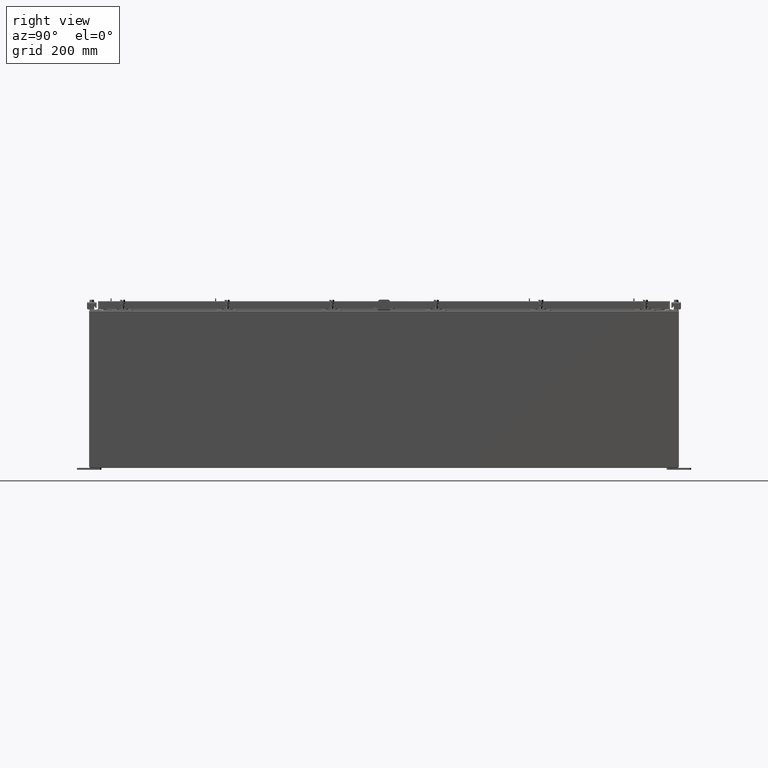
[diagram: clean part render]
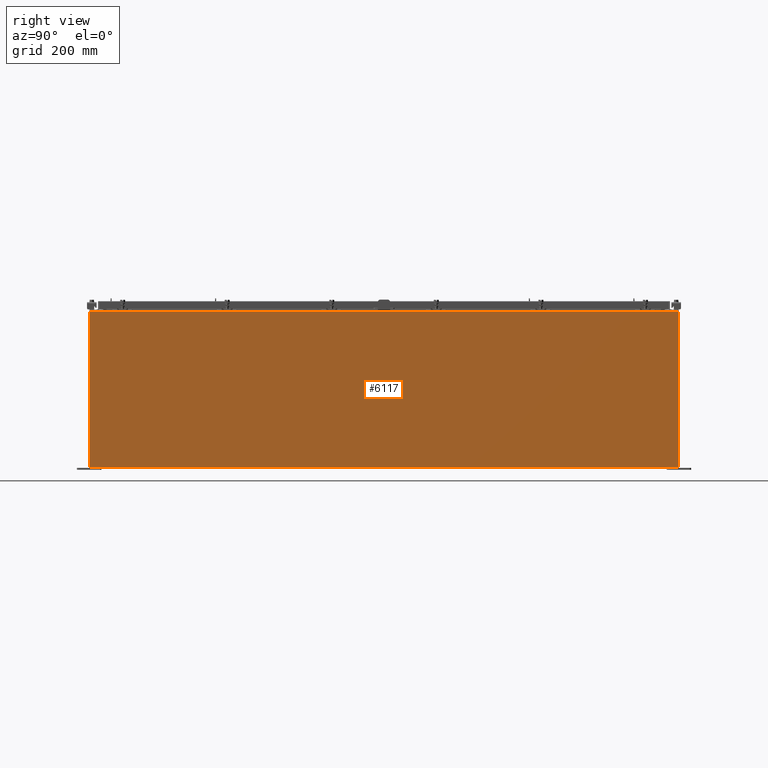
[diagram: same view with one face highlighted and labeled with its STEP entity id]
A machine part, right view. The second image highlights one B-rep face of the part: STEP entity #6117.
In plain terms, the highlighted planar face has unit normal (-1, 0, 0).
Its self-contained STEP definition (entity closure, byte-faithful):
#258 = AXIS2_PLACEMENT_3D ( 'NONE', #23745, #2544, #17443 ) ;
#409 = DIRECTION ( 'NONE',  ( 3.430827668758847500E-015, 0.0000000000000000000, 1.000000000000000000 ) ) ;
#619 = CARTESIAN_POINT ( 'NONE',  ( 17.99999999999999600, 29.92529999999999300, 0.01299999999999984700 ) ) ;
#2506 = EDGE_LOOP ( 'NONE', ( #26972, #9935, #16449, #12145 ) ) ;
#2544 = DIRECTION ( 'NONE',  ( -1.000000000000000000, 0.0000000000000000000, 3.430827668758846700E-015 ) ) ;
#3898 = FACE_OUTER_BOUND ( 'NONE', #2506, .T. ) ;
#4676 = DIRECTION ( 'NONE',  ( -0.0000000000000000000, -1.000000000000000000, -0.0000000000000000000 ) ) ;
#4718 = LINE ( 'NONE', #21718, #15394 ) ;
#5192 = CARTESIAN_POINT ( 'NONE',  ( 17.99999999999999600, -29.92530000000001100, 0.01299999999999984800 ) ) ;
#6117 = ADVANCED_FACE ( 'NONE', ( #3898 ), #21630, .F. ) ;
#6865 = CARTESIAN_POINT ( 'NONE',  ( 17.99999999999999600, 29.92529999999998900, -6.201571169367082000E-014 ) ) ;
#7078 = VERTEX_POINT ( 'NONE', #5192 ) ;
#7809 = VECTOR ( 'NONE', #409, 39.37007874015748100 ) ;
#8186 = EDGE_CURVE ( 'NONE', #26156, #19296, #4718, .T. ) ;
#9423 = EDGE_CURVE ( 'NONE', #19296, #7078, #13722, .T. ) ;
#9935 = ORIENTED_EDGE ( 'NONE', *, *, #9423, .T. ) ;
#12145 = ORIENTED_EDGE ( 'NONE', *, *, #18732, .T. ) ;
#12866 = CARTESIAN_POINT ( 'NONE',  ( 18.00000000000005300, -29.92530000000001100, 15.83760000000000200 ) ) ;
#12879 = VERTEX_POINT ( 'NONE', #619 ) ;
#13315 = CARTESIAN_POINT ( 'NONE',  ( 17.99999999999999600, -29.92530000000001100, 0.01299999999999984700 ) ) ;
#13446 = CARTESIAN_POINT ( 'NONE',  ( 18.00000000000005000, 29.92529999999999300, 15.83760000000000200 ) ) ;
#13722 = LINE ( 'NONE', #25548, #18691 ) ;
#14157 = LINE ( 'NONE', #6865, #7809 ) ;
#15394 = VECTOR ( 'NONE', #4676, 39.37007874015748100 ) ;
#16449 = ORIENTED_EDGE ( 'NONE', *, *, #25345, .F. ) ;
#17443 = DIRECTION ( 'NONE',  ( 3.430827668758846700E-015, 0.0000000000000000000, 1.000000000000000000 ) ) ;
#17730 = LINE ( 'NONE', #13315, #22693 ) ;
#18691 = VECTOR ( 'NONE', #19137, 39.37007874015748100 ) ;
#18732 = EDGE_CURVE ( 'NONE', #12879, #26156, #14157, .T. ) ;
#19137 = DIRECTION ( 'NONE',  ( -3.430827668758847500E-015, 0.0000000000000000000, -1.000000000000000000 ) ) ;
#19296 = VERTEX_POINT ( 'NONE', #12866 ) ;
#21630 = PLANE ( 'NONE',  #258 ) ;
#21718 = CARTESIAN_POINT ( 'NONE',  ( 18.00000000000005000, 29.92529999999999300, 15.83760000000000200 ) ) ;
#21935 = DIRECTION ( 'NONE',  ( -0.0000000000000000000, -1.000000000000000000, -0.0000000000000000000 ) ) ;
#22693 = VECTOR ( 'NONE', #21935, 39.37007874015748100 ) ;
#23745 = CARTESIAN_POINT ( 'NONE',  ( 17.99999999999999600, 0.0000000000000000000, -6.201571169367082000E-014 ) ) ;
#25345 = EDGE_CURVE ( 'NONE', #12879, #7078, #17730, .T. ) ;
#25548 = CARTESIAN_POINT ( 'NONE',  ( 17.99999999999999600, -29.92530000000001100, -6.201571169367082000E-014 ) ) ;
#26156 = VERTEX_POINT ( 'NONE', #13446 ) ;
#26972 = ORIENTED_EDGE ( 'NONE', *, *, #8186, .T. ) ;